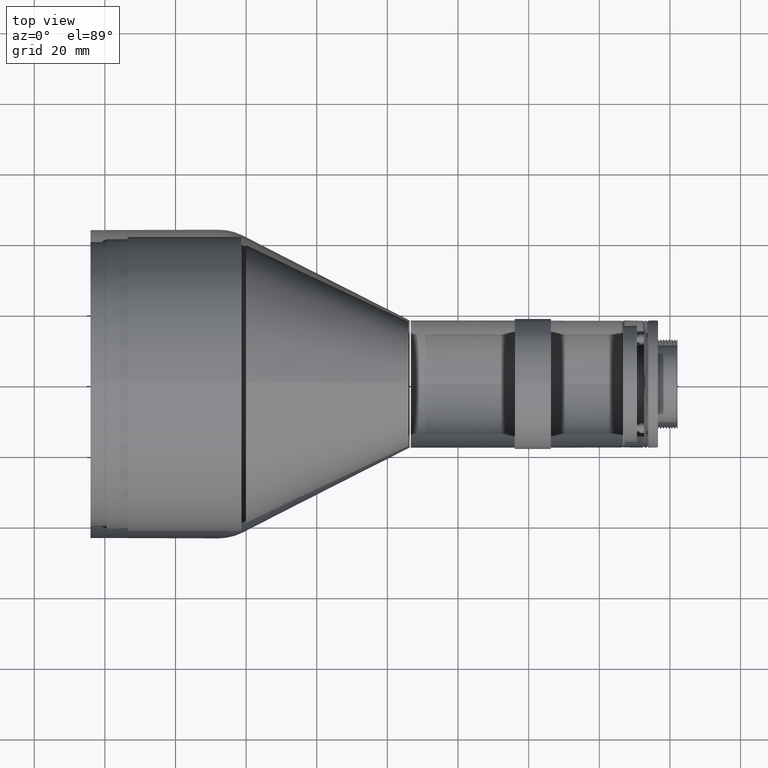
[diagram: clean part render]
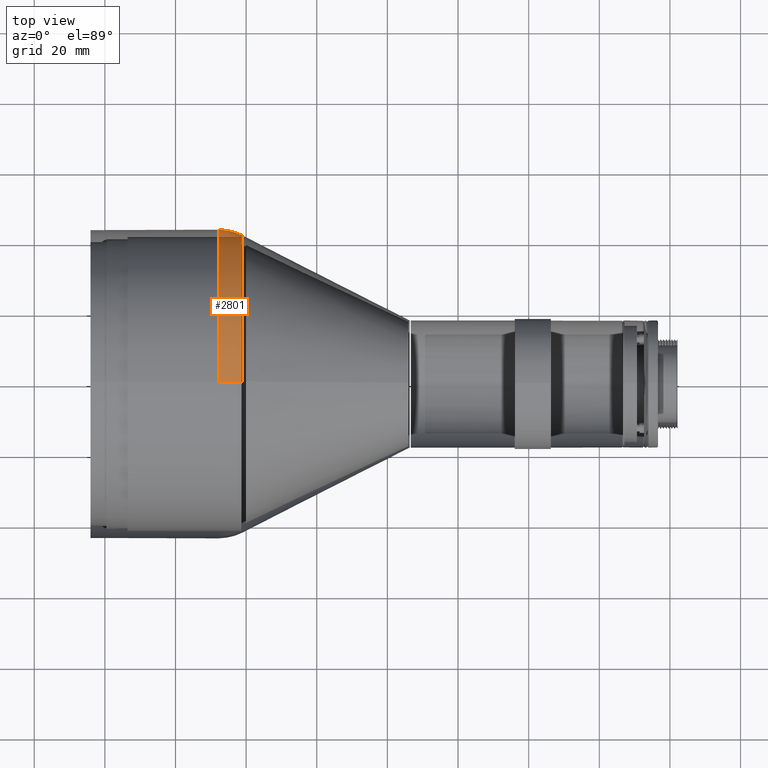
[diagram: same view with one face highlighted and labeled with its STEP entity id]
A machine part, top view. The second image highlights one B-rep face of the part: STEP entity #2801.
In plain terms, the highlighted toroidal blend (fillet) surface has major radius 28.7 mm and minor (blend) radius 15 mm.
Its self-contained STEP definition (entity closure, byte-faithful):
#12 = VERTEX_POINT ( 'NONE', #9108 ) ;
#122 = CARTESIAN_POINT ( 'NONE',  ( 12.17900414586291902, 9.998799471279598945E-10, -120.4114151908859895 ) ) ;
#464 = CARTESIAN_POINT ( 'NONE',  ( 12.17900414489633221, 34.66229061196906969, -137.3468776572183856 ) ) ;
#526 = EDGE_CURVE ( 'NONE', #12, #4277, #10494, .T. ) ;
#623 = DIRECTION ( 'NONE',  ( -5.271068605765139318E-11, 0.9999856803328532884, 0.005351553908963149753 ) ) ;
#628 = CARTESIAN_POINT ( 'NONE',  ( 12.17900414489674077, 41.40745581848008783, -149.8552774777312777 ) ) ;
#784 = CARTESIAN_POINT ( 'NONE',  ( 18.97945199853882414, 18.44069211839378042, -126.1983838269753164 ) ) ;
#828 = B_SPLINE_CURVE_WITH_KNOTS ( 'NONE', 3,
 ( #9406, #10264, #1170, #3659, #2953, #6270 ),
 .UNSPECIFIED., .F., .F.,
 ( 4, 2, 4 ),
 ( 0.000000000000000000, 0.5000000000000000000, 1.000000000000000000 ),
 .UNSPECIFIED. ) ;
#1170 = CARTESIAN_POINT ( 'NONE',  ( 16.81948258838044197, -0.2301841029912561898, -121.0994586858025315 ) ) ;
#1284 = CARTESIAN_POINT ( 'NONE',  ( 12.17900414489576555, 19.30413165793278552, -124.8028237535398404 ) ) ;
#1442 = CARTESIAN_POINT ( 'NONE',  ( 12.17900414489560390, 14.03433933872086392, -122.6282598241926394 ) ) ;
#1770 = EDGE_LOOP ( 'NONE', ( #8734, #5939, #9635, #7715, #2842 ) ) ;
#2249 = CARTESIAN_POINT ( 'NONE',  ( 12.17900414489600891, 26.57865715822964958, -129.3063890664346616 ) ) ;
#2298 = VERTEX_POINT ( 'NONE', #3847 ) ;
#2306 = TOROIDAL_SURFACE ( 'NONE', #8192, 28.69999999114270040, 15.00000000872379857 ) ;
#2630 = CARTESIAN_POINT ( 'NONE',  ( 18.97945199923772819, 5.283100534830323269, -122.2838414896619383 ) ) ;
#2664 = B_SPLINE_CURVE_WITH_KNOTS ( 'NONE', 3,
 ( #122, #9784, #9173, #4197 ),
 .UNSPECIFIED., .F., .F.,
 ( 4, 4 ),
 ( 0.000000000000000000, 1.000000000000000000 ),
 .UNSPECIFIED. ) ;
#2801 = ADVANCED_FACE ( 'NONE', ( #3875 ), #2306, .F. ) ;
#2842 = ORIENTED_EDGE ( 'NONE', *, *, #5943, .F. ) ;
#2952 = CARTESIAN_POINT ( 'NONE',  ( 12.17900414586291902, 9.998799471279598945E-10, -120.4114151908859895 ) ) ;
#2953 = CARTESIAN_POINT ( 'NONE',  ( 13.35534159086342321, -0.2338629089316198728, -120.4120409605303195 ) ) ;
#3352 = CARTESIAN_POINT ( 'NONE',  ( 12.17900414021520206, 28.69958901692131548, -163.9578255935401216 ) ) ;
#3389 = CARTESIAN_POINT ( 'NONE',  ( 18.97945199724323473, 42.05455038603847129, -161.1328476075945275 ) ) ;
#3659 = CARTESIAN_POINT ( 'NONE',  ( 14.53161912898656460, -0.2331189801165937381, -120.5510506946336875 ) ) ;
#3847 = CARTESIAN_POINT ( 'NONE',  ( 12.17900414489909977, -0.2338629052395140018, -120.4120409601942043 ) ) ;
#3875 = FACE_OUTER_BOUND ( 'NONE', #1770, .T. ) ;
#3933 = CARTESIAN_POINT ( 'NONE',  ( 12.17900414489536232, 5.700758428454681948, -120.6911870341235868 ) ) ;
#3985 = CARTESIAN_POINT ( 'NONE',  ( 12.17900414374843976, 43.69937423061163884, -163.8775522848591493 ) ) ;
#4103 = EDGE_CURVE ( 'NONE', #5060, #6856, #6485, .T. ) ;
#4147 = CARTESIAN_POINT ( 'NONE',  ( 18.97945199839083585, 42.06928571645767079, -163.8862759189314033 ) ) ;
#4197 = CARTESIAN_POINT ( 'NONE',  ( 12.17900414489909977, -0.2338629052395140018, -120.4120409601942043 ) ) ;
#4261 = CARTESIAN_POINT ( 'NONE',  ( 18.97945199737533883, 39.84810001957675496, -150.3423920646231977 ) ) ;
#4277 = VERTEX_POINT ( 'NONE', #2952 ) ;
#4636 = CARTESIAN_POINT ( 'NONE',  ( 12.17900414489625227, 32.83870540809585492, -135.1384228190226509 ) ) ;
#4744 = DIRECTION ( 'NONE',  ( 1.000000000000000000, 5.271954267226459942E-11, -1.513894552467045099E-12 ) ) ;
#5050 = EDGE_CURVE ( 'NONE', #6856, #2298, #828, .T. ) ;
#5060 = VERTEX_POINT ( 'NONE', #9555 ) ;
#5275 = CARTESIAN_POINT ( 'NONE',  ( 18.97945199938870076, -0.2251392734379625005, -122.0421294746490020 ) ) ;
#5569 = CARTESIAN_POINT ( 'NONE',  ( 12.17900414489706407, 43.68412008653670853, -161.0271791244292672 ) ) ;
#5835 = CARTESIAN_POINT ( 'NONE',  ( 18.97945199732838617, 40.66539428366166931, -152.9856441714912023 ) ) ;
#5890 = CARTESIAN_POINT ( 'NONE',  ( 18.97945199816143713, 25.48282488759272724, -130.5244726572009029 ) ) ;
#5939 = ORIENTED_EDGE ( 'NONE', *, *, #9415, .T. ) ;
#5943 = EDGE_CURVE ( 'NONE', #4277, #2298, #2664, .T. ) ;
#6227 = CARTESIAN_POINT ( 'NONE',  ( 12.17900414489657557, 39.20472145056558588, -144.5971979162515595 ) ) ;
#6270 = CARTESIAN_POINT ( 'NONE',  ( 12.17900414489909977, -0.2338629052395140018, -120.4120409601942043 ) ) ;
#6279 = CARTESIAN_POINT ( 'NONE',  ( 12.17900414586291902, 9.998799471279598945E-10, -120.4114151908859895 ) ) ;
#6380 = CARTESIAN_POINT ( 'NONE',  ( 12.17900414489528238, 2.850413978409149340, -120.4114151909548980 ) ) ;
#6400 = AXIS2_PLACEMENT_3D ( 'NONE', #3352, #8234, #6669 ) ;
#6485 = B_SPLINE_CURVE_WITH_KNOTS ( 'NONE', 3,
 ( #4147, #3389, #8430, #5835, #4261, #9992, #9127, #9078, #8219, #7612, #5890, #8318, #784, #6654, #7398, #2630, #10691, #9180 ),
 .UNSPECIFIED., .F., .F.,
 ( 4, 2, 2, 2, 2, 2, 2, 2, 4 ),
 ( 0.5000000000000000000, 0.5625000000000000000, 0.6249999999999998890, 0.6874999999999998890, 0.7499999999999997780, 0.8124999999999997780, 0.8749999999999997780, 0.9374999999999998890, 1.000000000000000000 ),
 .UNSPECIFIED. ) ;
#6654 = CARTESIAN_POINT ( 'NONE',  ( 18.97945199881051437, 13.34174206201969071, -124.1182283742334675 ) ) ;
#6669 = DIRECTION ( 'NONE',  ( 0.000000000000000000, 0.9999856803328532884, 0.005351553908962808880 ) ) ;
#6856 = VERTEX_POINT ( 'NONE', #5275 ) ;
#7189 = CARTESIAN_POINT ( 'NONE',  ( 12.17900414172799906, 2.256106412801270007E-10, -164.1114151906799918 ) ) ;
#7193 = CARTESIAN_POINT ( 'NONE',  ( 12.17900414489649386, 37.84533745367833291, -142.0763228861990228 ) ) ;
#7398 = CARTESIAN_POINT ( 'NONE',  ( 18.97945199895138302, 10.68989389275411206, -123.3292715302100930 ) ) ;
#7612 = CARTESIAN_POINT ( 'NONE',  ( 18.97945199804569327, 27.63089242143982460, -132.2681920969618830 ) ) ;
#7715 = ORIENTED_EDGE ( 'NONE', *, *, #5050, .T. ) ;
#7945 = CARTESIAN_POINT ( 'NONE',  ( 12.17900414489584726, 21.83224540661418445, -126.1486976859211353 ) ) ;
#8192 = AXIS2_PLACEMENT_3D ( 'NONE', #7189, #4744, #623 ) ;
#8219 = CARTESIAN_POINT ( 'NONE',  ( 18.97945199783371351, 31.54566698729940910, -136.1412888532368015 ) ) ;
#8234 = DIRECTION ( 'NONE',  ( -1.796004348667478179E-12, 0.005351553908963383073, -0.9999856803328533994 ) ) ;
#8318 = CARTESIAN_POINT ( 'NONE',  ( 18.97945199840799901, 20.88766792391410831, -127.4895309997510253 ) ) ;
#8430 = CARTESIAN_POINT ( 'NONE',  ( 18.97945199726234122, 41.76863310676949226, -158.3809386476208374 ) ) ;
#8734 = ORIENTED_EDGE ( 'NONE', *, *, #526, .F. ) ;
#8857 = CARTESIAN_POINT ( 'NONE',  ( 12.17900414489608885, 28.79683938658354947, -131.1181294920890252 ) ) ;
#8984 = CIRCLE ( 'NONE', #6400, 15.00000000872380213 ) ;
#9078 = CARTESIAN_POINT ( 'NONE',  ( 18.97945199773749891, 33.31227721879624681, -138.2705703998011018 ) ) ;
#9108 = CARTESIAN_POINT ( 'NONE',  ( 12.17900414374843976, 43.69937423061163884, -163.8775522848591493 ) ) ;
#9127 = CARTESIAN_POINT ( 'NONE',  ( 18.97945199756828316, 36.39622679569901464, -142.8329813186124113 ) ) ;
#9173 = CARTESIAN_POINT ( 'NONE',  ( 12.17900414489779948, -0.1559093460956478272, -120.4116237817316630 ) ) ;
#9180 = CARTESIAN_POINT ( 'NONE',  ( 18.97945199938870076, -0.2251392734379625005, -122.0421294746490020 ) ) ;
#9406 = CARTESIAN_POINT ( 'NONE',  ( 18.97945199938870076, -0.2251392734379625005, -122.0421294746490020 ) ) ;
#9415 = EDGE_CURVE ( 'NONE', #12, #5060, #8984, .T. ) ;
#9516 = CARTESIAN_POINT ( 'NONE',  ( 12.17900414489681715, 42.25075246036202259, -152.5923537539657673 ) ) ;
#9555 = CARTESIAN_POINT ( 'NONE',  ( 18.97945199839083585, 42.06928571645767079, -163.8862759189314033 ) ) ;
#9563 = CARTESIAN_POINT ( 'NONE',  ( 12.17900414489698235, 43.38909847767093453, -158.1783727044635839 ) ) ;
#9635 = ORIENTED_EDGE ( 'NONE', *, *, #4103, .T. ) ;
#9784 = CARTESIAN_POINT ( 'NONE',  ( 12.17900414489649741, -0.07795467254846351335, -120.4114151909214172 ) ) ;
#9992 = CARTESIAN_POINT ( 'NONE',  ( 18.97945199749528200, 37.71348988437439687, -145.2659978762588082 ) ) ;
#10264 = CARTESIAN_POINT ( 'NONE',  ( 17.93095199470467449, -0.2279933041466176424, -121.5088290138726563 ) ) ;
#10494 = B_SPLINE_CURVE_WITH_KNOTS ( 'NONE', 3,
 ( #3985, #5569, #9563, #9516, #628, #6227, #7193, #464, #4636, #8857, #2249, #7945, #1284, #1442, #10537, #3933, #6380, #6279 ),
 .UNSPECIFIED., .F., .F.,
 ( 4, 2, 2, 2, 2, 2, 2, 2, 4 ),
 ( 0.5008531836991959585, 0.5632465357367965053, 0.6256398877743969411, 0.6880332398119974879, 0.7504265918495980348, 0.8128199438871984706, 0.8752132959247990174, 0.9376066479623994532, 1.000000000000000000 ),
 .UNSPECIFIED. ) ;
#10537 = CARTESIAN_POINT ( 'NONE',  ( 12.17900414489552219, 11.29278930908084710, -121.7996228692381493 ) ) ;
#10691 = CARTESIAN_POINT ( 'NONE',  ( 18.97945199938321537, 2.528289039792583015, -122.0273941434551261 ) ) ;